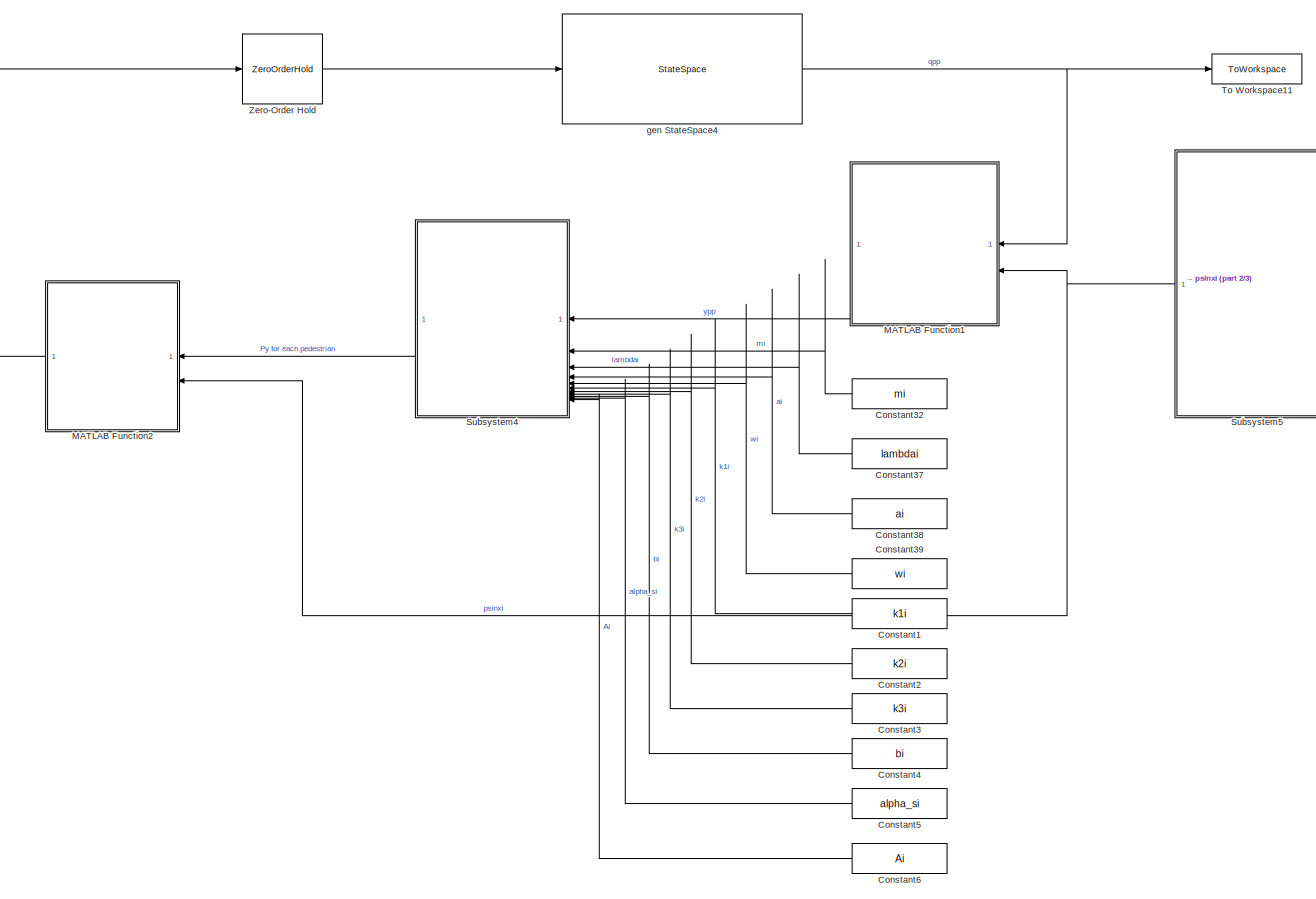
[diagram: root canvas - part 1/3, most of the canvas]
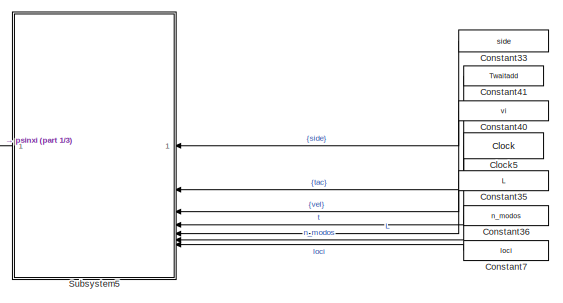
[diagram: root canvas - part 2/3, middle right region]
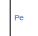
[diagram: root canvas - part 3/3, top left region]
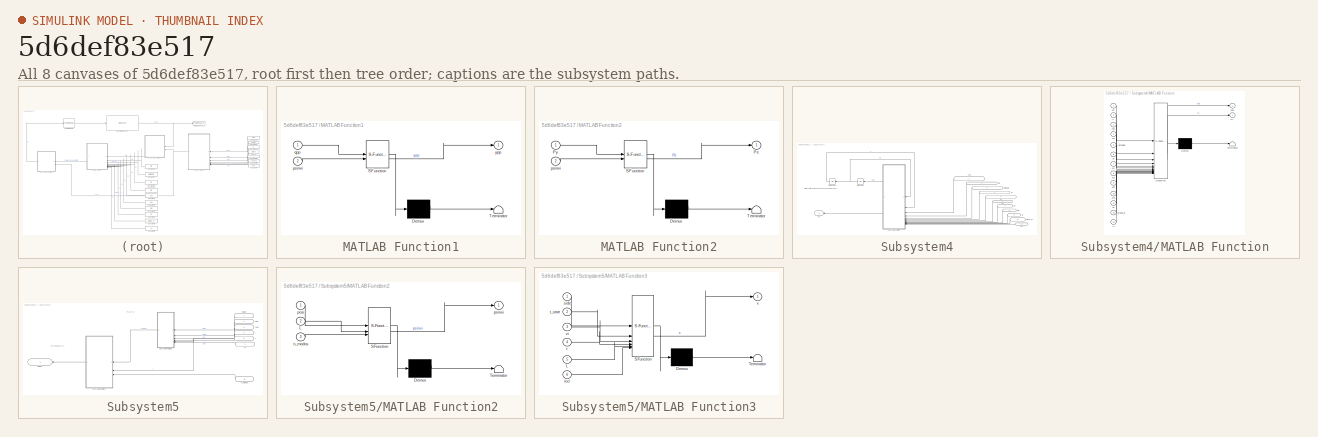
[diagram: thumbnail index - all 8 canvases of the model, root first then tree order]
MODEL slx_5d6def83e517
KIND model
CONFIG AbsTol = auto
CONFIG EnableMultiTasking = off
CONFIG FixedStep = t_step
CONFIG MaxStep = auto
CONFIG MinStep = auto
CONFIG RelTol = 1e-3
CONFIG SampleTimeConstraint = Unconstrained
CONFIG SolverName = ode1be
CONFIG StartTime = t_init
CONFIG StopTime = t_end
BLOCK [Clock] Clock5
BLOCK [Constant] Constant1
  Value = k1i
BLOCK [Constant] Constant2
  Value = k2i
BLOCK [Constant] Constant3
  Value = k3i
BLOCK [Constant] Constant32
  Value = mi
BLOCK [Constant] Constant33
  Value = side
BLOCK [Constant] Constant35
  Value = L
BLOCK [Constant] Constant36
  Value = n_modos
BLOCK [Constant] Constant37
  Value = lambdai
BLOCK [Constant] Constant38
  Value = ai
BLOCK [Constant] Constant39
  Value = wi
BLOCK [Constant] Constant4
  Value = bi
BLOCK [Constant] Constant40
  Value = vi
BLOCK [Constant] Constant41
  Value = Twaitadd
BLOCK [Constant] Constant5
  Value = alpha_si
BLOCK [Constant] Constant6
  Value = Ai
BLOCK [Constant] Constant7
  Value = loci
BLOCK [SubSystem] MATLAB Function1
  ErrorFcn = Stateflow.Translate.translate
  PermitHierarchicalResolution = ExplicitOnly
  SFBlockType = MATLAB Function
  TreatAsAtomicUnit = on
BLOCK [Demux] MATLAB Function1/ Demux 
  Outputs = 1
BLOCK [S-Function] MATLAB Function1/ SFunction 
  EnableBusSupport = off
  FunctionName = sf_sfun
  PortCounts = [2 2]
  SFcnIsStateOwnerBlock = off
  SFunctionDeploymentMode = off
  Tag = Stateflow S-Function 1
BLOCK [Terminator] MATLAB Function1/ Terminator 
BLOCK [Inport] MATLAB Function1/psinxi
  Port = 2
BLOCK [Inport] MATLAB Function1/qpp
BLOCK [Outport] MATLAB Function1/ypp
BLOCK [SubSystem] MATLAB Function2
  ErrorFcn = Stateflow.Translate.translate
  PermitHierarchicalResolution = ExplicitOnly
  SFBlockType = MATLAB Function
  TreatAsAtomicUnit = on
BLOCK [Demux] MATLAB Function2/ Demux 
  Outputs = 1
BLOCK [S-Function] MATLAB Function2/ SFunction 
  EnableBusSupport = off
  FunctionName = sf_sfun
  PortCounts = [2 2]
  SFcnIsStateOwnerBlock = off
  SFunctionDeploymentMode = off
  Tag = Stateflow S-Function 2
BLOCK [Terminator] MATLAB Function2/ Terminator 
BLOCK [Outport] MATLAB Function2/Pe
BLOCK [Inport] MATLAB Function2/Py
BLOCK [Inport] MATLAB Function2/psinxi
  Port = 2
BLOCK [SubSystem] Subsystem4
BLOCK [Inport] Subsystem4/In11
  IconDisplay = Port number and signal name
  Port = 11
BLOCK [Inport] Subsystem4/In6
  IconDisplay = Port number and signal name
  Port = 6
BLOCK [Inport] Subsystem4/In7
  IconDisplay = Port number and signal name
  Port = 7
BLOCK [Inport] Subsystem4/In8
  IconDisplay = Port number and signal name
  Port = 8
BLOCK [Integrator] Subsystem4/Integrator
  InitialCondition = v0p
BLOCK [Integrator] Subsystem4/Integrator1
  InitialCondition = v0
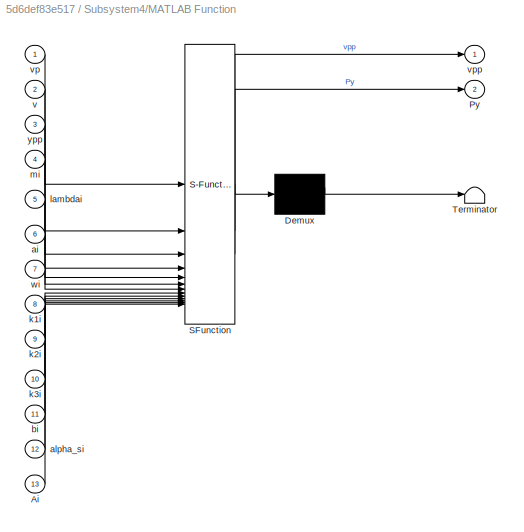
BLOCK [SubSystem] Subsystem4/MATLAB Function
  ErrorFcn = Stateflow.Translate.translate
  PermitHierarchicalResolution = ExplicitOnly
  SFBlockType = MATLAB Function
  TreatAsAtomicUnit = on
BLOCK [Demux] Subsystem4/MATLAB Function/ Demux 
  Outputs = 1
BLOCK [S-Function] Subsystem4/MATLAB Function/ SFunction 
  EnableBusSupport = off
  FunctionName = sf_sfun
  PortCounts = [13 3]
  SFcnIsStateOwnerBlock = off
  SFunctionDeploymentMode = off
  Tag = Stateflow S-Function 16
BLOCK [Terminator] Subsystem4/MATLAB Function/ Terminator 
BLOCK [Inport] Subsystem4/MATLAB Function/Ai
  Port = 13
BLOCK [Outport] Subsystem4/MATLAB Function/Py
  Port = 2
BLOCK [Inport] Subsystem4/MATLAB Function/ai
  Port = 6
BLOCK [Inport] Subsystem4/MATLAB Function/alpha_si
  Port = 12
BLOCK [Inport] Subsystem4/MATLAB Function/bi
  Port = 11
BLOCK [Inport] Subsystem4/MATLAB Function/k1i
  Port = 8
BLOCK [Inport] Subsystem4/MATLAB Function/k2i
  Port = 9
BLOCK [Inport] Subsystem4/MATLAB Function/k3i
  Port = 10
BLOCK [Inport] Subsystem4/MATLAB Function/lambdai
  Port = 5
BLOCK [Inport] Subsystem4/MATLAB Function/mi
  Port = 4
BLOCK [Inport] Subsystem4/MATLAB Function/v
  Port = 2
BLOCK [Inport] Subsystem4/MATLAB Function/vp
BLOCK [Outport] Subsystem4/MATLAB Function/vpp
BLOCK [Inport] Subsystem4/MATLAB Function/wi
  Port = 7
BLOCK [Inport] Subsystem4/MATLAB Function/ypp
  Port = 3
BLOCK [Outport] Subsystem4/Py
  IconDisplay = Port number and signal name
BLOCK [Inport] Subsystem4/ai
  IconDisplay = Port number and signal name
  Port = 4
BLOCK [Inport] Subsystem4/alpha_si
  IconDisplay = Port number and signal name
  Port = 10
BLOCK [Inport] Subsystem4/bi
  IconDisplay = Port number and signal name
  Port = 9
BLOCK [Inport] Subsystem4/lambdai
  IconDisplay = Port number and signal name
  Port = 3
BLOCK [Inport] Subsystem4/mi
  IconDisplay = Port number and signal name
  Port = 2
BLOCK [Inport] Subsystem4/wi
  IconDisplay = Port number and signal name
  Port = 5
BLOCK [Inport] Subsystem4/ypp
  IconDisplay = Port number and signal name
BLOCK [SubSystem] Subsystem5
BLOCK [Inport] Subsystem5/L
  IconDisplay = Port number and signal name
  Port = 5
BLOCK [Inport] Subsystem5/L1
  IconDisplay = Port number and signal name
  Port = 7
BLOCK [SubSystem] Subsystem5/MATLAB Function2
  ErrorFcn = Stateflow.Translate.translate
  PermitHierarchicalResolution = ExplicitOnly
  SFBlockType = MATLAB Function
  TreatAsAtomicUnit = on
BLOCK [Demux] Subsystem5/MATLAB Function2/ Demux 
  Outputs = 1
BLOCK [S-Function] Subsystem5/MATLAB Function2/ SFunction 
  EnableBusSupport = off
  FunctionName = sf_sfun
  PortCounts = [3 2]
  SFcnIsStateOwnerBlock = off
  SFunctionDeploymentMode = off
  Tag = Stateflow S-Function 17
BLOCK [Terminator] Subsystem5/MATLAB Function2/ Terminator 
BLOCK [Inport] Subsystem5/MATLAB Function2/L
  Port = 2
BLOCK [Inport] Subsystem5/MATLAB Function2/n_modos
  Port = 3
BLOCK [Inport] Subsystem5/MATLAB Function2/posi
BLOCK [Outport] Subsystem5/MATLAB Function2/psinxi
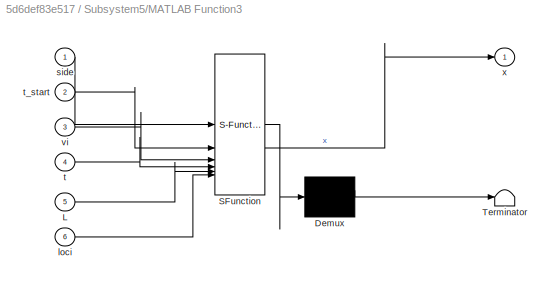
BLOCK [SubSystem] Subsystem5/MATLAB Function3
  ErrorFcn = Stateflow.Translate.translate
  PermitHierarchicalResolution = ExplicitOnly
  SFBlockType = MATLAB Function
  TreatAsAtomicUnit = on
BLOCK [Demux] Subsystem5/MATLAB Function3/ Demux 
  Outputs = 1
BLOCK [S-Function] Subsystem5/MATLAB Function3/ SFunction 
  EnableBusSupport = off
  FunctionName = sf_sfun
  PortCounts = [6 2]
  SFcnIsStateOwnerBlock = off
  SFunctionDeploymentMode = off
  Tag = Stateflow S-Function 18
BLOCK [Terminator] Subsystem5/MATLAB Function3/ Terminator 
BLOCK [Inport] Subsystem5/MATLAB Function3/L
  Port = 5
BLOCK [Inport] Subsystem5/MATLAB Function3/loci
  Port = 6
BLOCK [Inport] Subsystem5/MATLAB Function3/side
BLOCK [Inport] Subsystem5/MATLAB Function3/t
  Port = 4
BLOCK [Inport] Subsystem5/MATLAB Function3/t_start
  Port = 2
BLOCK [Inport] Subsystem5/MATLAB Function3/vi
  Port = 3
BLOCK [Outport] Subsystem5/MATLAB Function3/x
BLOCK [Inport] Subsystem5/n_modos
  IconDisplay = Port number and signal name
  Port = 6
BLOCK [Outport] Subsystem5/psinxi
  IconDisplay = Port number and signal name
BLOCK [Inport] Subsystem5/t
  IconDisplay = Port number and signal name
  Port = 4
BLOCK [Inport] Subsystem5/{side}
  IconDisplay = Port number and signal name
BLOCK [Inport] Subsystem5/{tac}
  IconDisplay = Port number and signal name
  Port = 2
BLOCK [Inport] Subsystem5/{vel}
  IconDisplay = Port number and signal name
  Port = 3
BLOCK [ToWorkspace] To Workspace11
  FixptAsFi = on
  MaxDataPoints = inf
  SampleTime = -1
  SaveFormat = Timeseries
  VariableName = qpp
BLOCK [ZeroOrderHold] Zero-Order Hold
  SampleTime = -1
BLOCK [StateSpace] gen StateSpace4
  A = As
  B = Bs
  C = Cs
  D = Ds
  InitialCondition = x0
ANNOTATION Subsystem4: Initial conditions of the pedestrians, go on integrators
ANNOTATION Subsystem5: P x 1 array
ANNOTATION Subsystem5: P x n_modos array
LINE Clock5:1 -> Subsystem5:4
LINE Constant1:1 -> Subsystem4:6
LINE Constant2:1 -> Subsystem4:7
LINE Constant32:1 -> Subsystem4:2
LINE Constant33:1 -> Subsystem5:1
LINE Constant35:1 -> Subsystem5:5
LINE Constant36:1 -> Subsystem5:6
LINE Constant37:1 -> Subsystem4:3
LINE Constant38:1 -> Subsystem4:4
LINE Constant39:1 -> Subsystem4:5
LINE Constant3:1 -> Subsystem4:8
LINE Constant40:1 -> Subsystem5:3
LINE Constant41:1 -> Subsystem5:2
LINE Constant4:1 -> Subsystem4:9
LINE Constant5:1 -> Subsystem4:10
LINE Constant6:1 -> Subsystem4:11
LINE Constant7:1 -> Subsystem5:7
LINE MATLAB Function1:1 -> Subsystem4:1
LINE MATLAB Function2:1 -> Zero-Order Hold:1
LINE Subsystem4/In11:1 -> Subsystem4/MATLAB Function:13
LINE Subsystem4/In6:1 -> Subsystem4/MATLAB Function:8
LINE Subsystem4/In7:1 -> Subsystem4/MATLAB Function:9
LINE Subsystem4/In8:1 -> Subsystem4/MATLAB Function:10
LINE Subsystem4/Integrator1:1 -> Subsystem4/MATLAB Function:2
NET Subsystem4/Integrator:1 -> Subsystem4/Integrator1:1, Subsystem4/MATLAB Function:1
LINE Subsystem4/MATLAB Function:1 -> Subsystem4/Integrator:1
LINE Subsystem4/MATLAB Function:2 -> Subsystem4/Py:1
LINE Subsystem4/ai:1 -> Subsystem4/MATLAB Function:6
LINE Subsystem4/alpha_si:1 -> Subsystem4/MATLAB Function:12
LINE Subsystem4/bi:1 -> Subsystem4/MATLAB Function:11
LINE Subsystem4/lambdai:1 -> Subsystem4/MATLAB Function:5
LINE Subsystem4/mi:1 -> Subsystem4/MATLAB Function:4
LINE Subsystem4/wi:1 -> Subsystem4/MATLAB Function:7
LINE Subsystem4/ypp:1 -> Subsystem4/MATLAB Function:3
LINE Subsystem4:1 -> MATLAB Function2:1
LINE Subsystem5/L1:1 -> Subsystem5/MATLAB Function3:6
NET Subsystem5/L:1 -> Subsystem5/MATLAB Function2:2, Subsystem5/MATLAB Function3:5
LINE Subsystem5/MATLAB Function2:1 -> Subsystem5/psinxi:1
LINE Subsystem5/MATLAB Function3:1 -> Subsystem5/MATLAB Function2:1
LINE Subsystem5/n_modos:1 -> Subsystem5/MATLAB Function2:3
LINE Subsystem5/t:1 -> Subsystem5/MATLAB Function3:4
LINE Subsystem5/{side}:1 -> Subsystem5/MATLAB Function3:1
LINE Subsystem5/{tac}:1 -> Subsystem5/MATLAB Function3:2
LINE Subsystem5/{vel}:1 -> Subsystem5/MATLAB Function3:3
NET Subsystem5:1 -> MATLAB Function1:2, MATLAB Function2:2
LINE Zero-Order Hold:1 -> gen StateSpace4:1
NET gen StateSpace4:1 -> MATLAB Function1:1, To Workspace11:1
note: NET lines group one-source signal fan-out (src -> all destinations, sorted); 1:1 wires keep LINE
CHART MATLAB Function1 states=1 transitions=1
  STATE_LABEL 'eML_blk_kernel()'
  STATE_LABEL 'SCRIPT:\nfunction ypp = genToPhys(qpp,psinxi)\n% Generar la aceleración que expermentan todos los peatones i (desde el 1\n% hasta el peatón p), sumando la respuesta modal de todos los modos (la\n% contribución modal)\n% ypp = sum(psinxi*qpp,2);                                                    % Sumo todas las contribuciones modales de cada modo\nypp = psinxi*qpp;'
CHART MATLAB Function2 states=1 transitions=1
  STATE_LABEL 'eML_blk_kernel()'
  STATE_LABEL "SCRIPT:\nfunction Pe = physToGen(Py,psinxi)\n% Transforms lateral foot-forces from physical coordinates (one per pedestrian)\n% to generalized coordinates (one per mode)\n%\n% \n%\n%\nPe = psinxi.'*Py;"
CHART Subsystem4/MATLAB Function states=1 transitions=1
  STATE_LABEL 'eML_blk_kernel()'
  STATE_LABEL 'SCRIPT:\nfunction [vpp,Py] = fcn(vp, v, ypp, mi, lambdai, ai, wi, k1i, k2i, k3i, bi, alpha_si, Ai)\n\n% Initial \nlambda1 = k1i.*lambdai./(bi.*(Ai.^2));                                       % (P x 1)\nlambda2 = k2i.*lambdai.*bi./(Ai.^2);                                         % (P x 1)\nlambda3 = k3i.*lambdai.*bi;                                                  % (P x 1)\n% wi = wi/(2*pi)*b; % es igua...<+406ch>'
CHART Subsystem5/MATLAB Function2 states=1 transitions=1
  STATE_LABEL 'eML_blk_kernel()'
  STATE_LABEL 'SCRIPT:\nfunction psinxi = psinxi(posi, L, n_modos)\n% Compute psi(x) for all pedestrians\n%\n% psi(xi) = sin(pi*n/L*xi), where xi is the location where the i-th\n% pedestrian is located in this time step\n% psinxi = [ sin(1pix1/L) sin(2pix1/L) .... para todos los modos\n% sin(1pix2/L) sin(2pix2/L) .... para todos los modos\n% ....\n\n% Method 1\n% core_matrix = posi*(1:1:n_modos);\n% M_modos = (pi/L)*core_ma...<+202ch>'
CHART Subsystem5/MATLAB Function3 states=1 transitions=1
  STATE_LABEL 'eML_blk_kernel()'
  STATE_LABEL "SCRIPT:\nfunction x = pedestrian_position(side, t_start, vi, t, L, loci)\n% PEDESTRIAN_POSITION Determines the position of all pedestrians on the bridge.\n%\n% This function calculates the longitudinal position 'x' of pedestrians\n% considering reflective boundaries (they turn around at 0 and L).\n%\n% INPUTS:\n%   side    : Vector (Px1). Entry side (0: Left/Start, 1: Right/End).\n%             Determines ...<+1242ch>"
CHART  states=0 transitions=0
CHART  states=0 transitions=0
CHART  states=0 transitions=0
CHART  states=0 transitions=0
CHART  states=0 transitions=0
